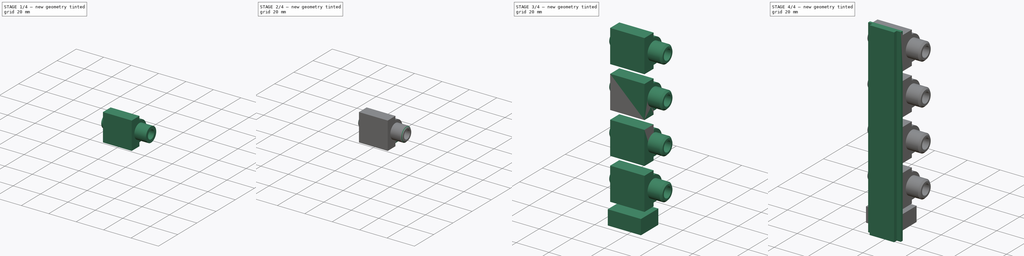
[diagram: build sequence overview — one tinted view per stage of 4, left to right]
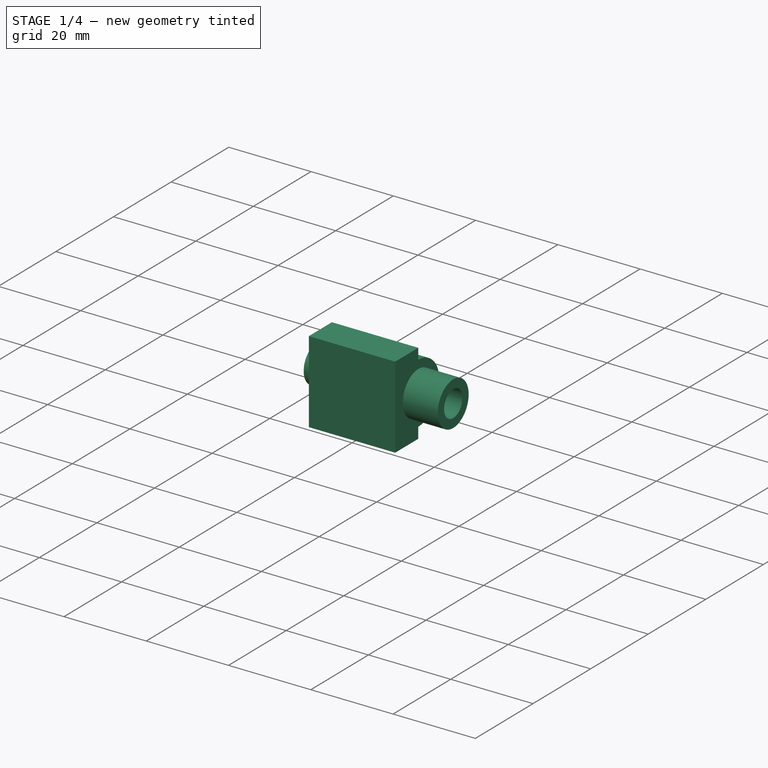
[diagram: stage 1 of 4 — iso view after this stage's code; geometry added in this stage tinted green]
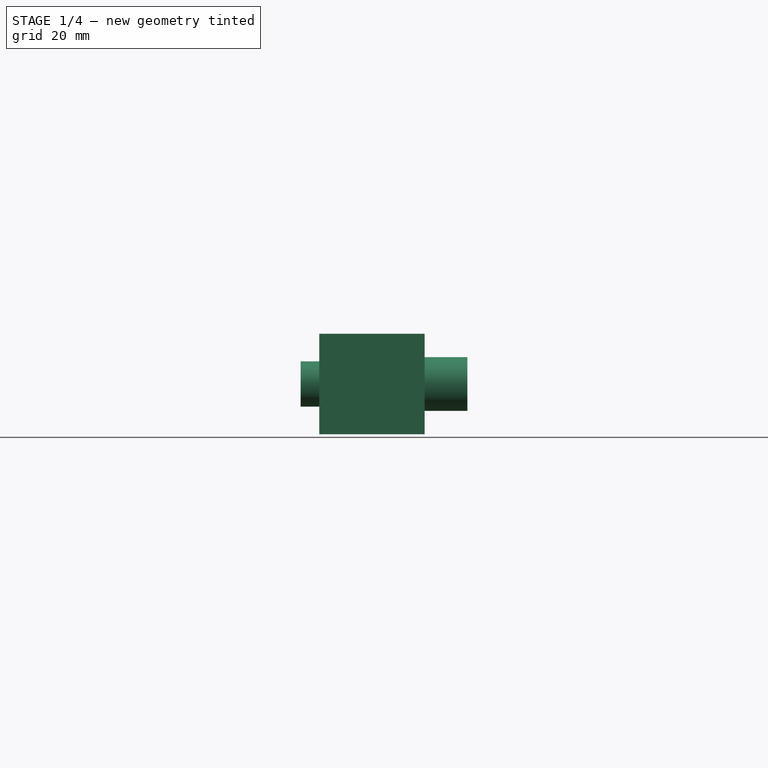
[diagram: stage 1 of 4 — front view after this stage's code; geometry added in this stage tinted green]
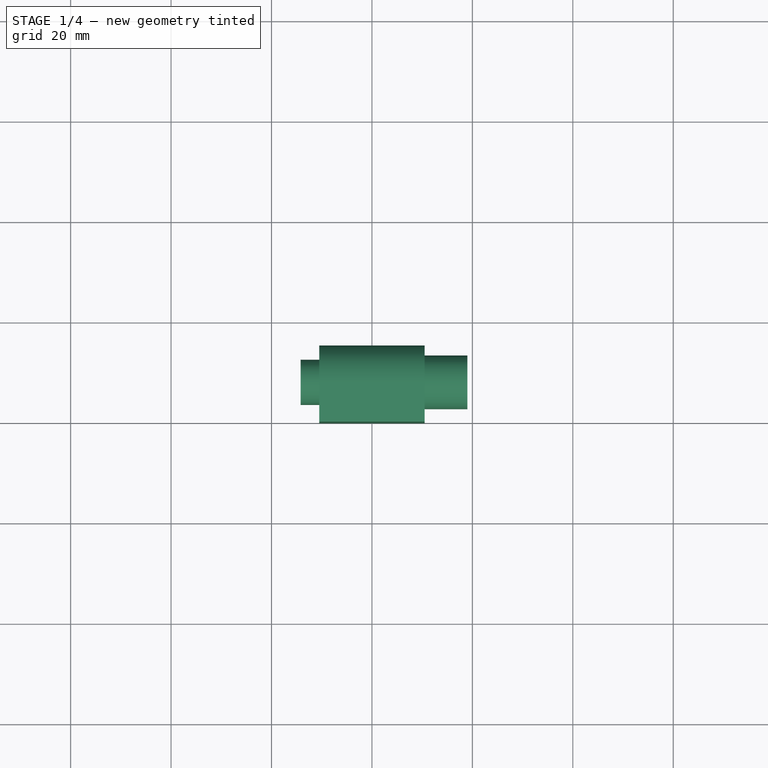
[diagram: stage 1 of 4 — top view after this stage's code; geometry added in this stage tinted green]
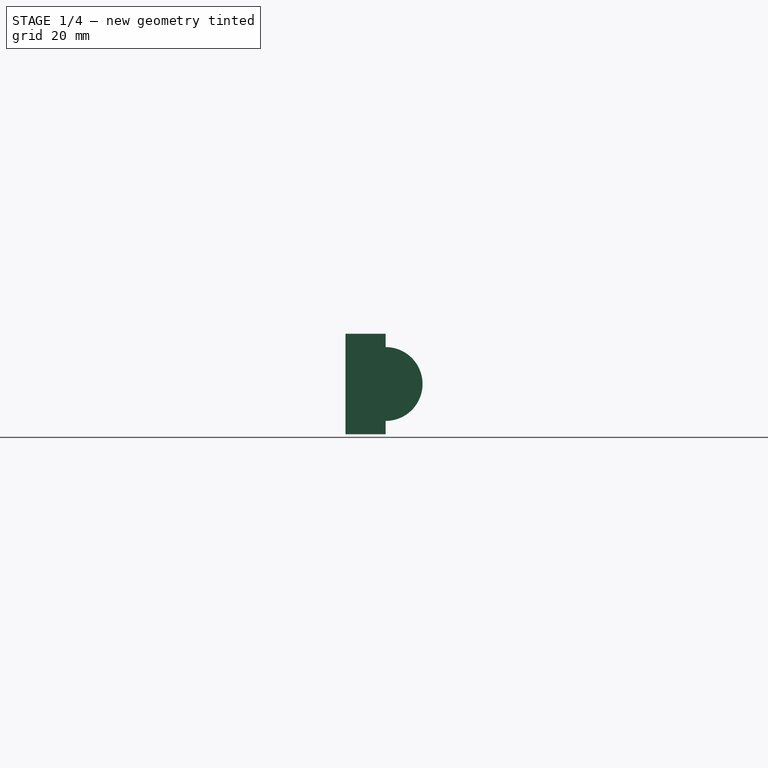
[diagram: stage 1 of 4 — right view after this stage's code; geometry added in this stage tinted green]
FCSTD DOCUMENT  (FreeCAD 0.18R15619 (Git))
Label: jacks
License: All rights reserved
LicenseURL: http://en.wikipedia.org/wiki/All_rights_reserved
objects: Sketcher::SketchObject×6, PartDesign::Pad×6, PartDesign::Body×3, Part::Fuse×2, PartDesign::Chamfer×1, PartDesign::Fillet×1, Part::FeaturePython×1
note: 26 computed .brp shape members not serialized (recipe doc carries the construction recipe); baked Part::Feature solids carry a one-line shape summary decoded from their .brp

FEATURE [PartDesign::Body] Body  label="bakelite"
  Group = -> [Sketch,Pad]
  Origin = -> Origin001
  Tip = -> Pad
FEATURE [Sketcher::SketchObject] Sketch001
  MapMode = 5
  Placement = pos=(0,0,0) rot=(0.57735,0.57735,0.57735;2.0944rad)
  Support = -> [YZ_Plane002]
  sketch-geometry (6):
    g0: LineSegment StartX=8 StartY=17.35 StartZ=0 EndX=8 EndY=20 EndZ=0
    g1: LineSegment StartX=8 StartY=2.65 StartZ=0 EndX=8 EndY=0 EndZ=0
    g2: ArcOfCircle CenterX=8 CenterY=10 CenterZ=0 NormalX=0 NormalY=0 NormalZ=1 AngleXU=0 Radius=7.35 StartAngle=4.71239 EndAngle=7.85398
    g3: LineSegment StartX=8 StartY=20 StartZ=0 EndX=0 EndY=20 EndZ=0
    g4: LineSegment StartX=0 StartY=20 StartZ=0 EndX=0 EndY=0 EndZ=0
    g5: LineSegment StartX=0 StartY=0 StartZ=0 EndX=8 EndY=0 EndZ=0
  constraints (18):
    c: Vertical(g0)
    c: Vertical(g1)
    c: Distance(g1,g0) = 14.7
    c: Coincident(g2,g0)
    c: Coincident(g2,g1)
    c: Vertical(g2,g0)
    c: Vertical(g0,g1)
    c: Coincident(g3,g0)
    c: Coincident(g4,g3)
    c: Vertical(g4)
    c: Coincident(g5,g4)
    c: Coincident(g5,g1)
    c: Horizontal(g3)
    c: Horizontal(g5)
    c: Distance(g4) = 20
    c: Distance(g3) = 8
    c: DistanceY(g2,g3) = 10
    c: Coincident(g4,g-1)
FEATURE [PartDesign::Pad] Pad001
  Length = 21
  Length2 = 100
  Midplane = true
  Placement = pos=(0,0,0) rot=(0.57735,0.57735,0.57735;2.0944rad)
  Profile = -> Sketch001
  Type = 0
FEATURE [Sketcher::SketchObject] Sketch002
  ExternalGeometry = -> [Pad001]
  MapMode = 5
  Placement = pos=(10.5,-2.3e-15,2.3e-15) rot=(0.57735,0.57735,0.57735;2.0944rad)
  Support = -> [Pad001]
  sketch-geometry (2):
    g0: Circle CenterX=8 CenterY=10 CenterZ=0 NormalX=0 NormalY=0 NormalZ=1 AngleXU=0 Radius=5.35
    g1: Circle CenterX=8 CenterY=10 CenterZ=0 NormalX=0 NormalY=0 NormalZ=1 AngleXU=0 Radius=3.175
  constraints (4):
    c: Coincident(g0,g-3)
    c: Radius(g0) = 5.35
    c: Coincident(g1,g0)
    c: Radius(g1) = 3.175
FEATURE [PartDesign::Pad] Pad002
  BaseFeature = -> Pad001
  Length = 8.5
  Length2 = 100
  Placement = pos=(0,0,0) rot=(0.57735,0.57735,0.57735;2.0944rad)
  Profile = -> Sketch002
  Type = 0
FEATURE [Sketcher::SketchObject] Sketch003
  ExternalGeometry = -> [Pad002]
  MapMode = 5
  Placement = pos=(-10.5,2.3e-15,-2.3e-15) rot=(0.57735,0.57735,-0.57735;4.18879rad)
  Support = -> [Pad002]
  sketch-geometry (1):
    g0: Circle CenterX=8 CenterY=-10 CenterZ=0 NormalX=0 NormalY=0 NormalZ=1 AngleXU=0 Radius=4.5
  constraints (2):
    c: Coincident(g0,g-3)
    c: Radius(g0) = 4.5
FEATURE [PartDesign::Pad] Pad003
  BaseFeature = -> Pad002
  Length = 3.7
  Length2 = 100
  Placement = pos=(0,0,0) rot=(0.57735,0.57735,0.57735;2.0944rad)
  Profile = -> Sketch003
  Type = 0
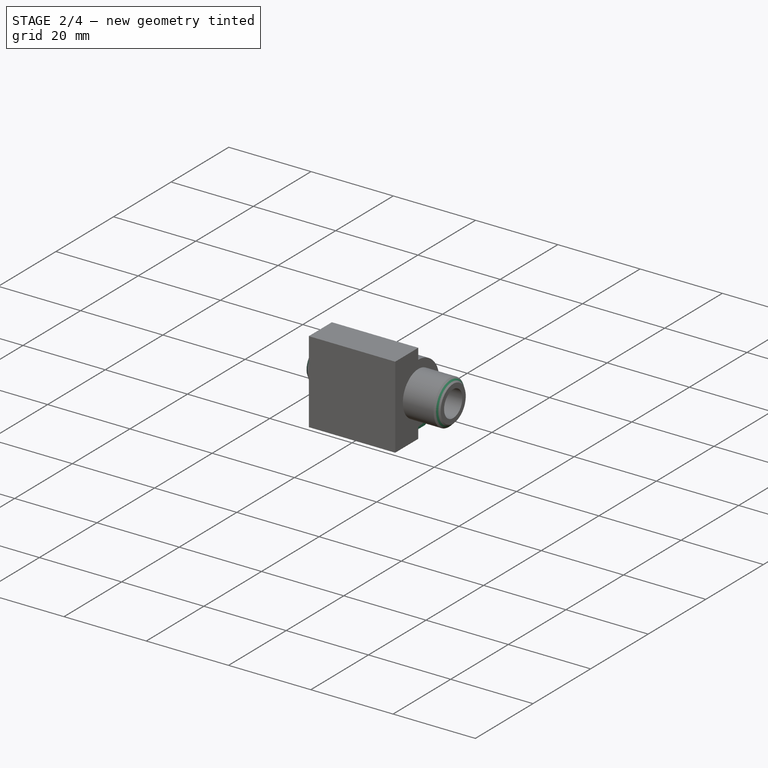
[diagram: stage 2 of 4 — iso view after this stage's code; geometry added in this stage tinted green]
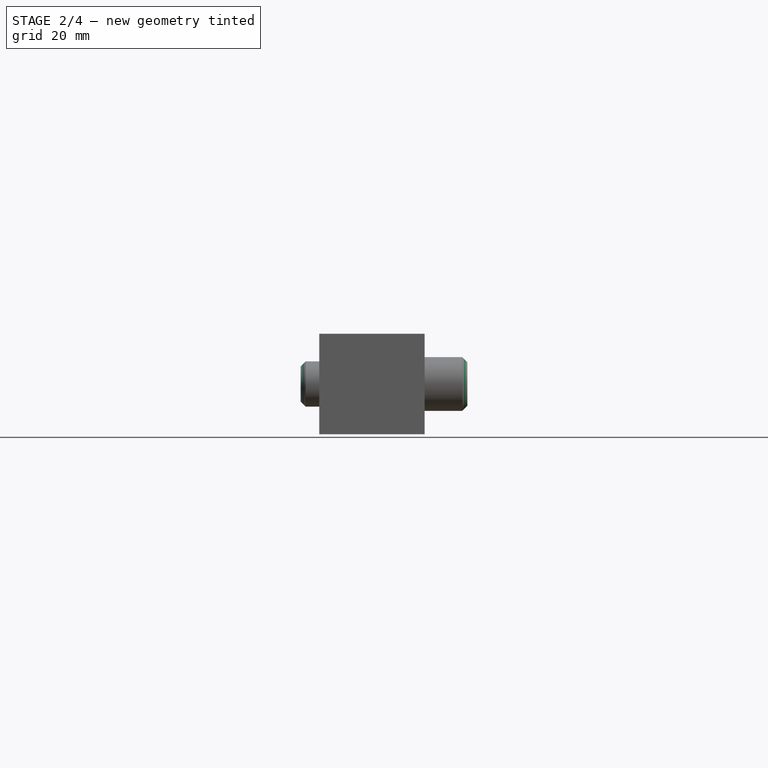
[diagram: stage 2 of 4 — front view after this stage's code; geometry added in this stage tinted green]
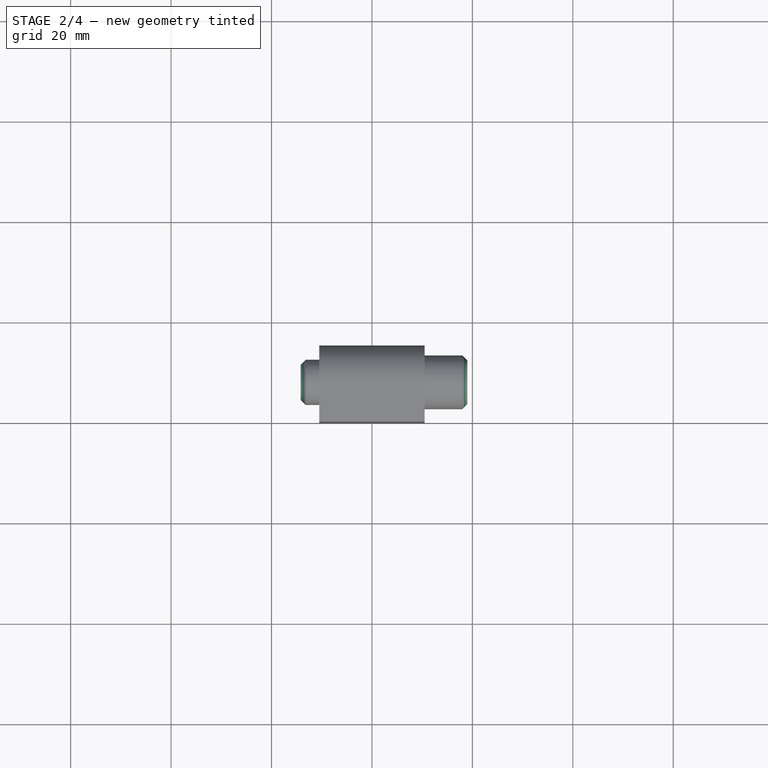
[diagram: stage 2 of 4 — top view after this stage's code; geometry added in this stage tinted green]
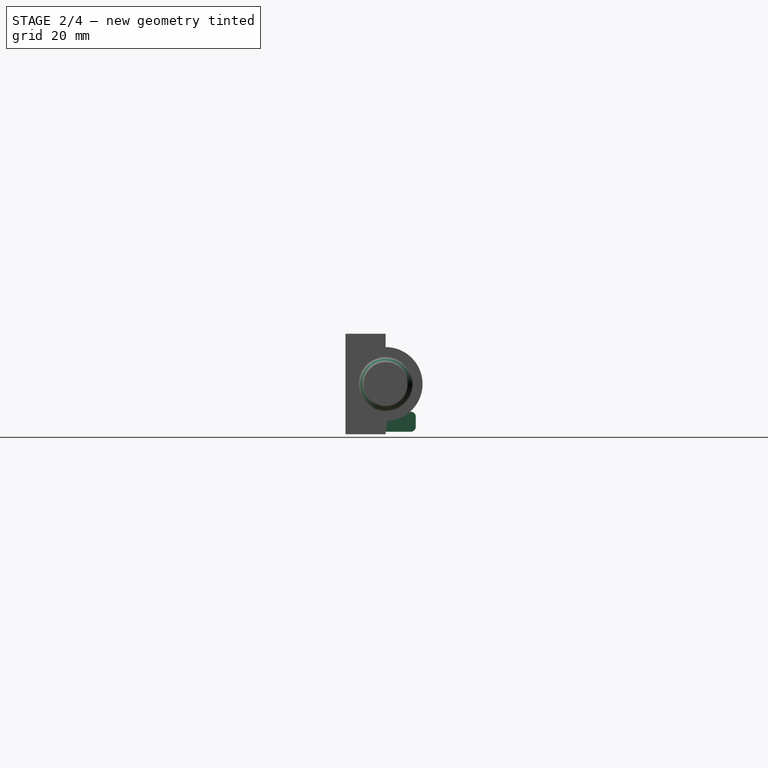
[diagram: stage 2 of 4 — right view after this stage's code; geometry added in this stage tinted green]
FEATURE [PartDesign::Chamfer] Chamfer
  Base = -> Pad003 [Edge22,Edge24]
  BaseFeature = -> Pad003
  Placement = pos=(0,0,0) rot=(0.57735,0.57735,0.57735;2.0944rad)
  Size = 1
FEATURE [PartDesign::Body] Body002  label="socket"
  Group = -> [Sketch004,Pad004]
  Origin = -> Origin
  Tip = -> Pad004
FEATURE [Sketcher::SketchObject] Sketch006
  ExternalGeometry = -> [Chamfer]
  MapMode = 5
  Placement = pos=(3.5e-15,8,-1.8e-15) rot=(0.57735,0.57735,0.57735;4.18879rad)
  Support = -> [Chamfer]
  sketch-geometry (8):
    g0: LineSegment StartX=0.5 StartY=-4.5 StartZ=0 EndX=4.5 EndY=-4.5 EndZ=0
    g1: LineSegment StartX=4.5 StartY=-4.5 StartZ=0 EndX=4.5 EndY=-8.5 EndZ=0
    g2: LineSegment StartX=4.5 StartY=-8.5 StartZ=0 EndX=0.5 EndY=-8.5 EndZ=0
    g3: LineSegment StartX=0.5 StartY=-8.5 StartZ=0 EndX=0.5 EndY=-4.5 EndZ=0
    g4: LineSegment StartX=0.5 StartY=8.5 StartZ=0 EndX=4.5 EndY=8.5 EndZ=0
    g5: LineSegment StartX=4.5 StartY=8.5 StartZ=0 EndX=4.5 EndY=4.5 EndZ=0
    g6: LineSegment StartX=4.5 StartY=4.5 StartZ=0 EndX=0.5 EndY=4.5 EndZ=0
    g7: LineSegment StartX=0.5 StartY=4.5 StartZ=0 EndX=0.5 EndY=8.5 EndZ=0
  constraints (24):
    c: Coincident(g0,g1)
    c: Coincident(g1,g2)
    c: Coincident(g2,g3)
    c: Coincident(g3,g0)
    c: Horizontal(g0)
    c: Horizontal(g2)
    c: Vertical(g1)
    c: Vertical(g3)
    c: Coincident(g4,g5)
    c: Coincident(g5,g6)
    c: Coincident(g6,g7)
    c: Coincident(g7,g4)
    c: Horizontal(g4)
    c: Horizontal(g6)
    c: Vertical(g5)
    c: Vertical(g7)
    c: Equal(g6,g0)
    c: Distance(g6) = 4
    c: DistanceX(g-3,g4) = 0.5
    c: Vertical(g0,g6)
    c: Distance(g2,g-4) = 2
    c: Equal(g4,g7)
    c: Equal(g3,g4)
    c: Distance(g4,g-3) = 2
FEATURE [PartDesign::Pad] Pad005
  BaseFeature = -> Chamfer
  Length = 6
  Length2 = 100
  Placement = pos=(0,0,0) rot=(0.57735,0.57735,0.57735;2.0944rad)
  Profile = -> Sketch006
  Type = 0
FEATURE [PartDesign::Fillet] Fillet
  Base = -> Pad005 [Edge54,Edge53,Edge50,Edge43]
  BaseFeature = -> Pad005
  Placement = pos=(0,0,0) rot=(0.57735,0.57735,0.57735;2.0944rad)
  Radius = 1
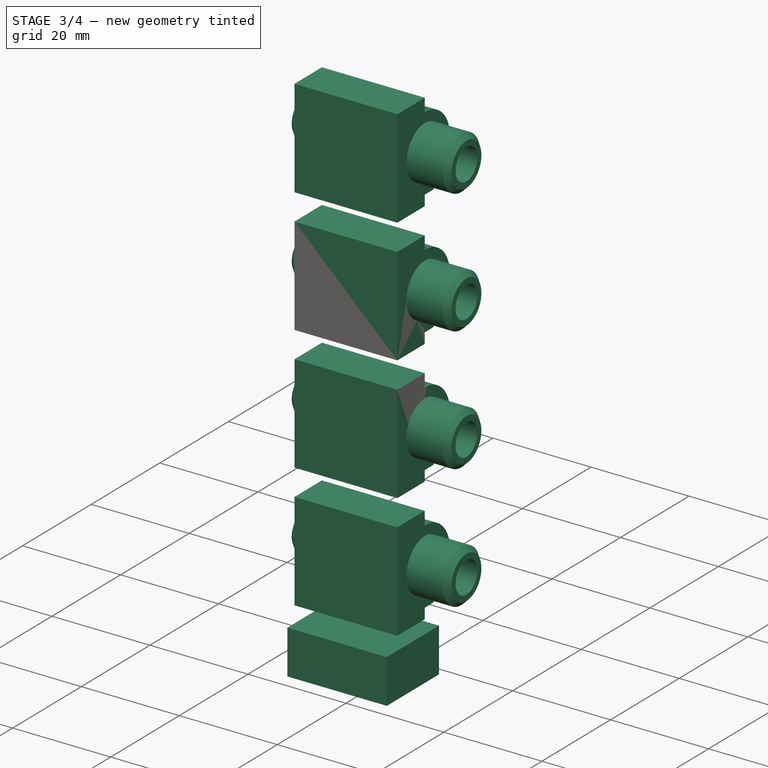
[diagram: stage 3 of 4 — iso view after this stage's code; geometry added in this stage tinted green]
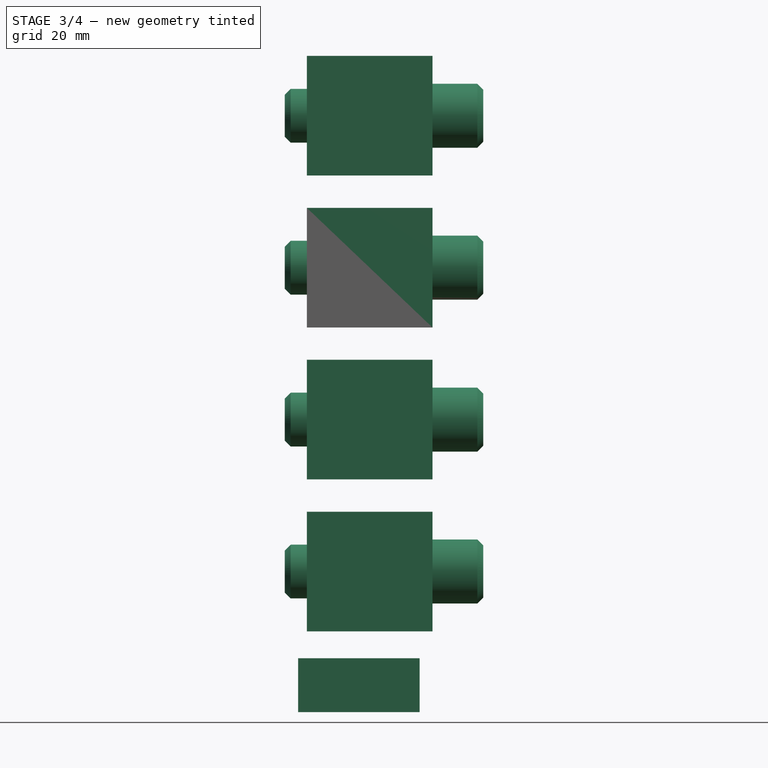
[diagram: stage 3 of 4 — front view after this stage's code; geometry added in this stage tinted green]
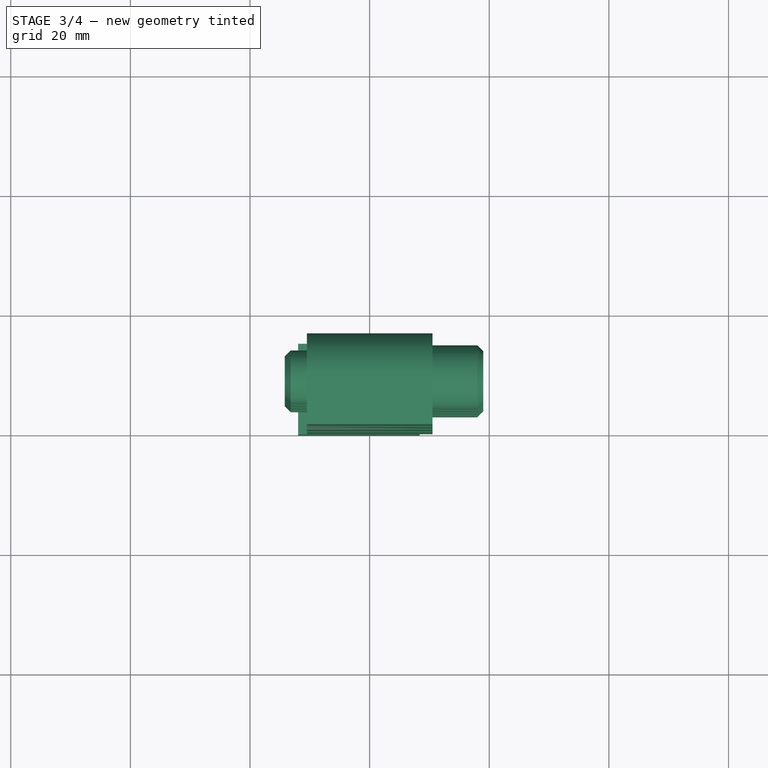
[diagram: stage 3 of 4 — top view after this stage's code; geometry added in this stage tinted green]
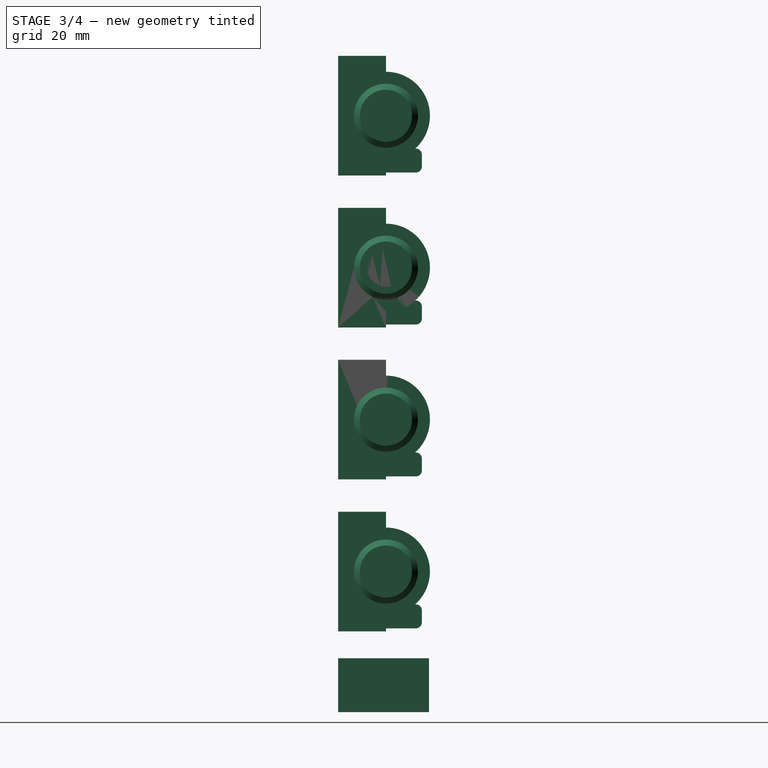
[diagram: stage 3 of 4 — right view after this stage's code; geometry added in this stage tinted green]
FEATURE [Sketcher::SketchObject] Sketch004
  MapMode = 5
  Placement = pos=(0,0,0) rot=(1,0,0;1.5708rad)
  Support = -> [XZ_Plane]
  sketch-geometry (4):
    g0: LineSegment StartX=-11.95 StartY=-45 StartZ=0 EndX=8.35 EndY=-45 EndZ=0
    g1: LineSegment StartX=8.35 StartY=-45 StartZ=0 EndX=8.35 EndY=-54 EndZ=0
    g2: LineSegment StartX=8.35 StartY=-54 StartZ=0 EndX=-11.95 EndY=-54 EndZ=0
    g3: LineSegment StartX=-11.95 StartY=-54 StartZ=0 EndX=-11.95 EndY=-45 EndZ=0
  constraints (12):
    c: Coincident(g0,g1)
    c: Coincident(g1,g2)
    c: Coincident(g2,g3)
    c: Coincident(g3,g0)
    c: Horizontal(g0)
    c: Horizontal(g2)
    c: Vertical(g1)
    c: Vertical(g3)
    c: Distance(g2) = 20.3
    c: Distance(g1) = 9
    c: DistanceX(g0,g-1) = 11.95
    c: DistanceY(g0,g-1) = 45
FEATURE [PartDesign::Pad] Pad004
  Length = 15.2
  Length2 = 100
  Placement = pos=(0,0,0) rot=(1,0,0;1.5708rad)
  Profile = -> Sketch004
  Reversed = true
  Type = 0
FEATURE [PartDesign::Body] Body001  label="jack"
  Group = -> [Sketch001,Pad001,Sketch002,Pad002,Sketch003,Pad003,Chamfer,Sketch006,Pad005,Fillet]
  Origin = -> Origin002
  Tip = -> Fillet
FEATURE [Part::FeaturePython] Array  # Draft array (typed FeaturePython)
  Angle = 360
  ArrayType = 0
  Axis = (0,0,1)
  Base = -> Fillet
  Center = (0,0,0)
  Fuse = false
  IntervalAxis = (0,0,0)
  IntervalX = (1,0,0)
  IntervalY = (0,1,0)
  IntervalZ = (0,0,25.4)
  NumberPolar = 1
  NumberX = 1
  NumberY = 1
  NumberZ = 4
  Placement = pos=(0,0,-40.5) rot=(0,0,1;0rad)
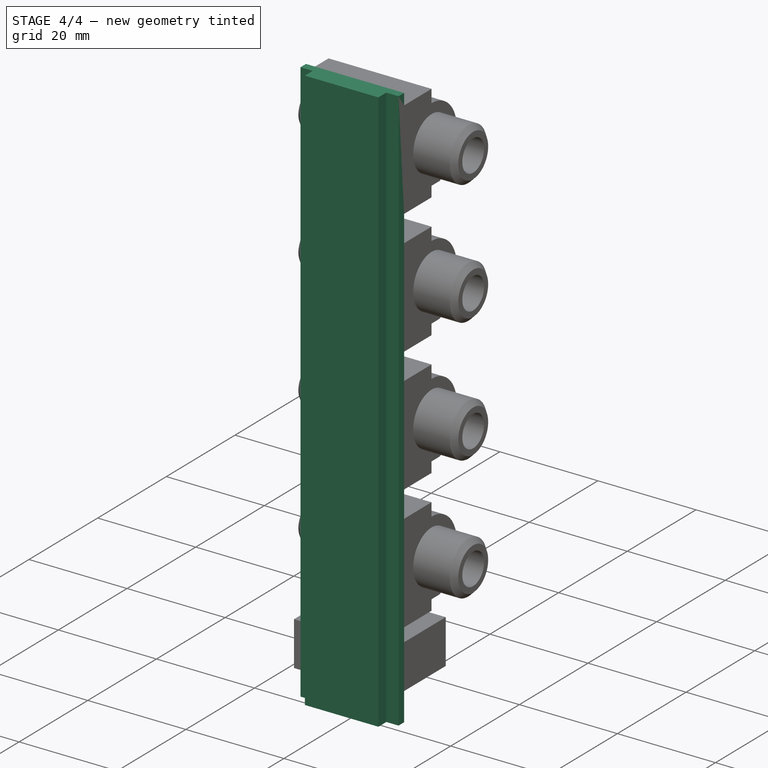
[diagram: stage 4 of 4 — iso view after this stage's code; geometry added in this stage tinted green]
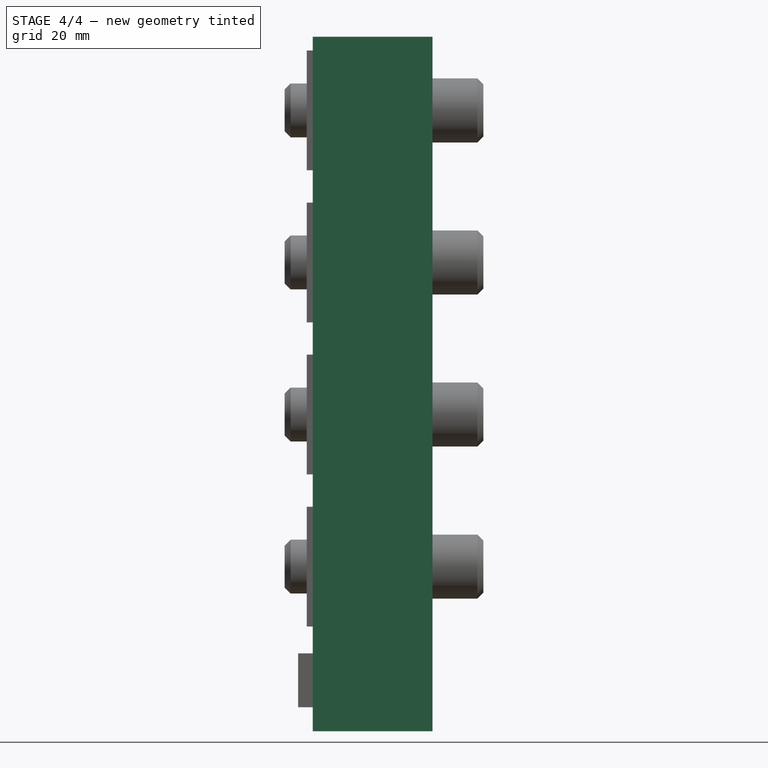
[diagram: stage 4 of 4 — front view after this stage's code; geometry added in this stage tinted green]
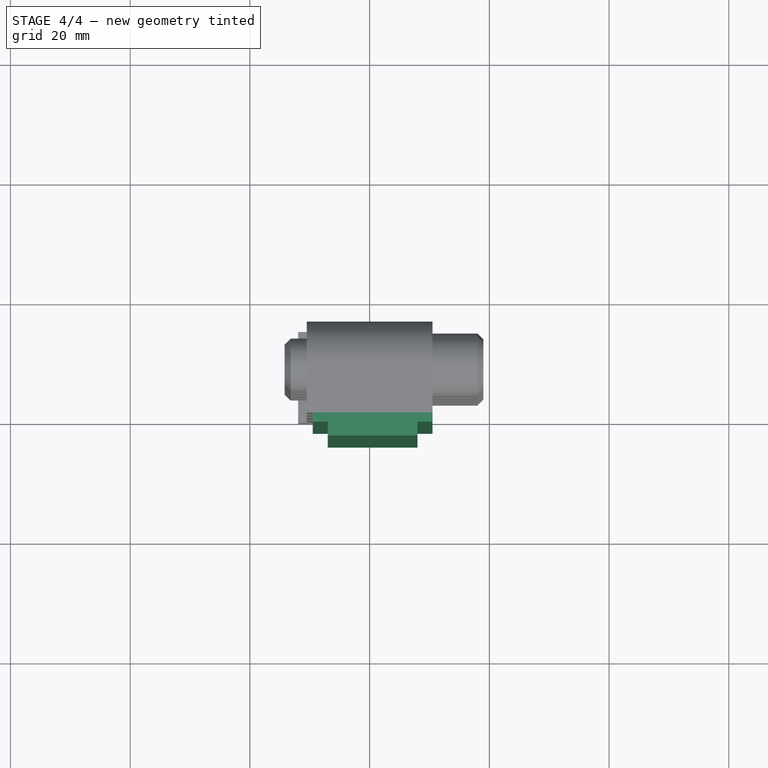
[diagram: stage 4 of 4 — top view after this stage's code; geometry added in this stage tinted green]
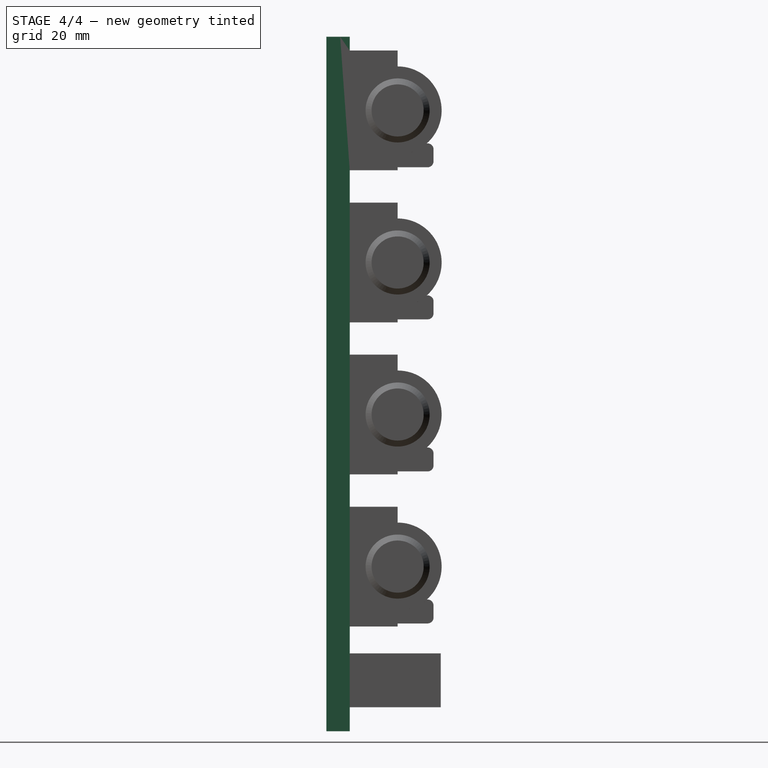
[diagram: stage 4 of 4 — right view after this stage's code; geometry added in this stage tinted green]
FEATURE [Sketcher::SketchObject] Sketch
  MapMode = 5
  Support = -> [XY_Plane001]
  sketch-geometry (8):
    g0: LineSegment StartX=10.5 StartY=-1.6 StartZ=0 EndX=10.5 EndY=0 EndZ=0
    g1: LineSegment StartX=10.5 StartY=0 StartZ=0 EndX=-9.5 EndY=0 EndZ=0
    g2: LineSegment StartX=-9.5 StartY=0 StartZ=0 EndX=-9.5 EndY=-1.6 EndZ=0
    g3: LineSegment StartX=-9.5 StartY=-1.6 StartZ=0 EndX=-7 EndY=-1.6 EndZ=0
    g4: LineSegment StartX=-7 StartY=-1.6 StartZ=0 EndX=-7 EndY=-3.9 EndZ=0
    g5: LineSegment StartX=-7 StartY=-3.9 StartZ=0 EndX=8 EndY=-3.9 EndZ=0
    g6: LineSegment StartX=8 StartY=-3.9 StartZ=0 EndX=8 EndY=-1.6 EndZ=0
    g7: LineSegment StartX=8 StartY=-1.6 StartZ=0 EndX=10.5 EndY=-1.6 EndZ=0
  constraints (24):
    c: Coincident(g0,g1)
    c: Coincident(g1,g2)
    c: Horizontal(g1)
    c: Vertical(g0)
    c: Vertical(g2)
    c: PointOnObject(g0,g-1)
    c: Distance(g-1,g0) = 10.5
    c: Distance(g0) = 1.6
    c: Distance(g1) = 20
    c: Coincident(g3,g2)
    c: Horizontal(g3)
    c: Coincident(g3,g4)
    c: Vertical(g4)
    c: Coincident(g4,g5)
    c: Horizontal(g5)
    c: Coincident(g5,g6)
    c: Vertical(g6)
    c: Coincident(g6,g7)
    c: Coincident(g7,g0)
    c: Horizontal(g7)
    c: Distance(g6) = 2.3
    c: Distance(g3) = 2.5
    c: Equal(g7,g3)
    c: Equal(g0,g2)
FEATURE [PartDesign::Pad] Pad
  Length = 116
  Length2 = 100
  Midplane = true
  Profile = -> Sketch
  Type = 0
FEATURE [Part::Fuse] Fusion
  Base = -> Array
  Tool = -> Body
FEATURE [Part::Fuse] Fusion001
  Base = -> Fusion
  Refine = true
  Tool = -> Body002
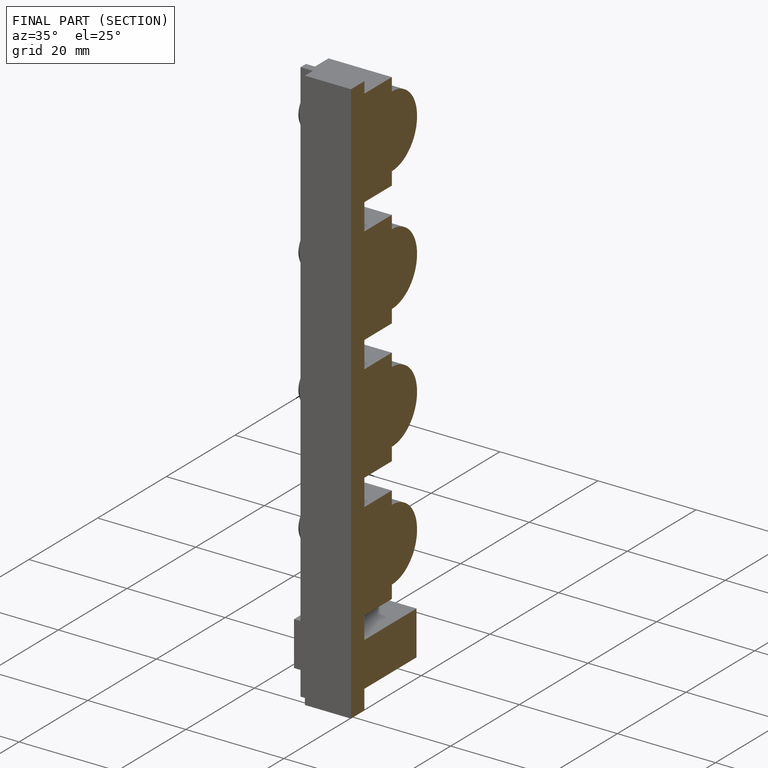
[diagram: finished part — half-section view (interior)]
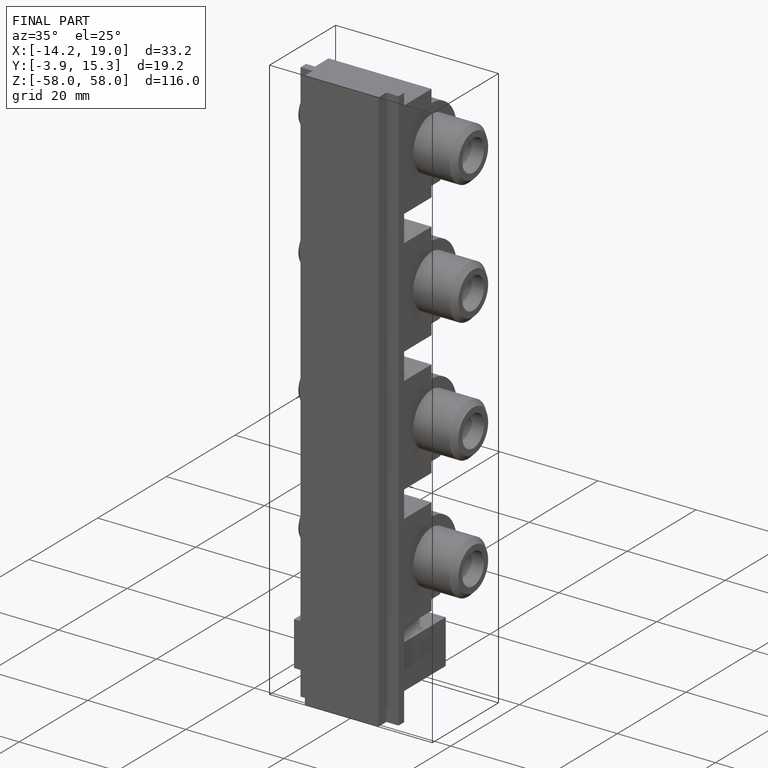
[diagram: finished part — iso view with bounding-box wireframe]
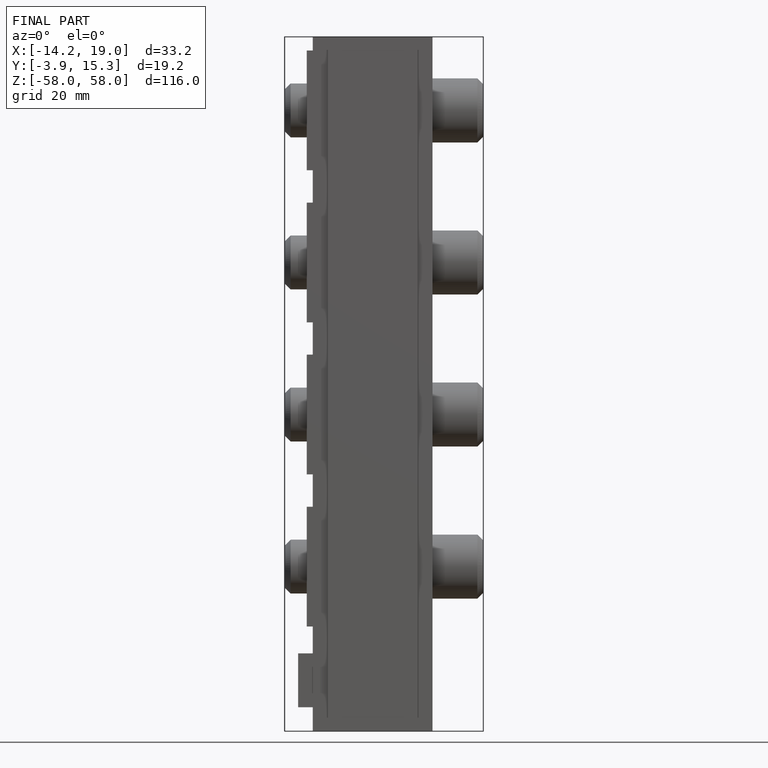
[diagram: finished part — front view with bounding-box wireframe]
